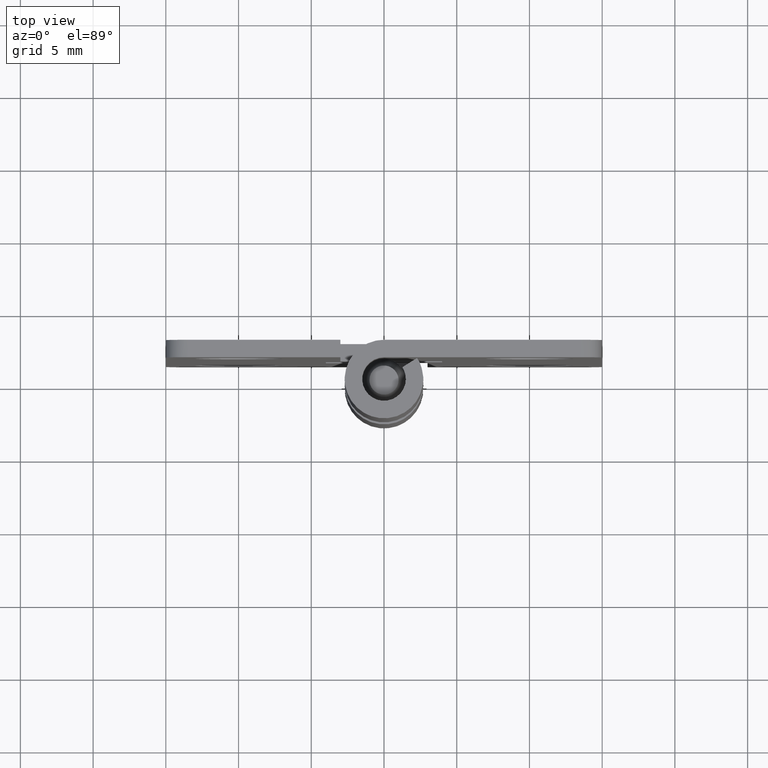
[diagram: clean part render]
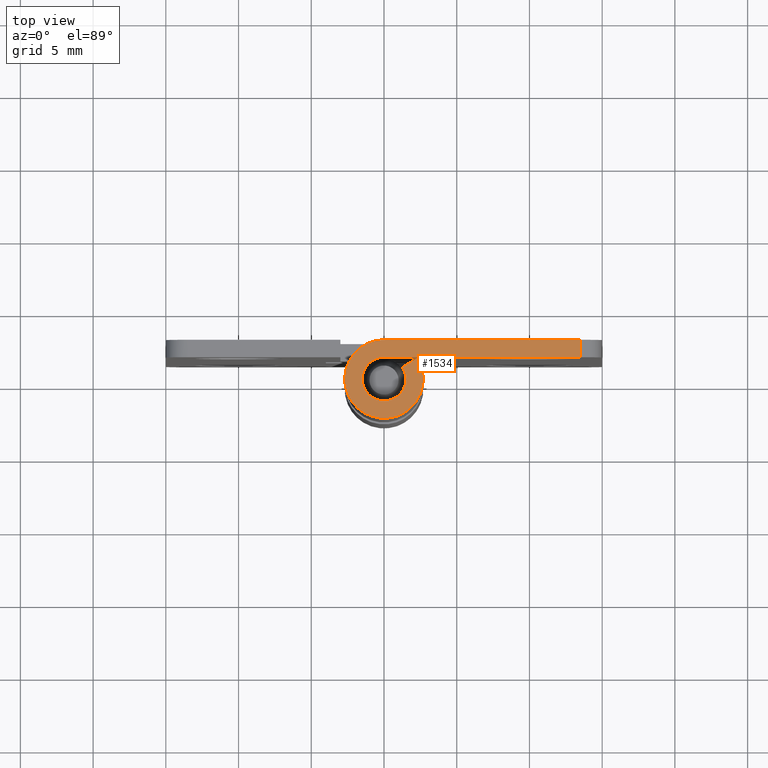
[diagram: same view with one face highlighted and labeled with its STEP entity id]
A machine part, top view. The second image highlights one B-rep face of the part: STEP entity #1534.
In plain terms, the highlighted face is a freeform B-spline surface patch.
Its self-contained STEP definition (entity closure, byte-faithful):
#1121=CARTESIAN_POINT('',(13.500000000000000,1.500000000000085,40.0));
#1122=VERTEX_POINT('',#1121);
#1143=CARTESIAN_POINT('',(13.500000000000000,2.699997000000000,40.0));
#1144=VERTEX_POINT('',#1143);
#1158=CARTESIAN_POINT('',(13.500000000000000,1.500000000000085,40.0));
#1159=CARTESIAN_POINT('',(13.500000000000000,2.699997000000000,40.0));
#1160=QUASI_UNIFORM_CURVE('',1,(#1158,#1159),.UNSPECIFIED.,.F.,.U.);
#1161=EDGE_CURVE('',#1122,#1144,#1160,.T.);
#1465=CARTESIAN_POINT('',(-3.508910966029414,2.969679104522496,40.0));
#1466=CARTESIAN_POINT('',(14.309177129929500,2.969679104522496,40.0));
#1467=CARTESIAN_POINT('',(-3.508910966029414,-2.968727653347806,40.0));
#1468=CARTESIAN_POINT('',(14.309177129929500,-2.968727653347806,40.0));
#1469=B_SPLINE_SURFACE_WITH_KNOTS('',1,1,((#1465,#1467),(#1466,#1468)),.UNSPECIFIED.,.F.,.F.,.U.,(2,2),(2,2),(0.0,17.818088095958920),(0.0,5.938406757870301),.UNSPECIFIED.);
#1470=CARTESIAN_POINT('',(-2.755364E-016,1.500000000000000,40.0));
#1471=VERTEX_POINT('',#1470);
#1472=CARTESIAN_POINT('',(-2.755364E-016,1.500000000000000,40.0));
#1473=CARTESIAN_POINT('',(13.500000000000000,1.500000000000085,40.0));
#1474=QUASI_UNIFORM_CURVE('',1,(#1472,#1473),.UNSPECIFIED.,.F.,.U.);
#1475=EDGE_CURVE('',#1471,#1122,#1474,.T.);
#1476=ORIENTED_EDGE('',*,*,#1475,.T.);
#1477=ORIENTED_EDGE('',*,*,#1161,.T.);
#1478=CARTESIAN_POINT('',(-0.004024921244143,2.699997000000000,40.0));
#1479=VERTEX_POINT('',#1478);
#1480=CARTESIAN_POINT('',(13.500000000000000,2.699997000000000,40.0));
#1481=CARTESIAN_POINT('',(-0.004024921244143,2.699997000000000,40.0));
#1482=QUASI_UNIFORM_CURVE('',1,(#1480,#1481),.UNSPECIFIED.,.F.,.U.);
#1483=EDGE_CURVE('',#1144,#1479,#1482,.T.);
#1484=ORIENTED_EDGE('',*,*,#1483,.T.);
#1485=CARTESIAN_POINT('',(2.277608394786020,1.450000000000086,40.0));
#1486=VERTEX_POINT('',#1485);
#1487=CARTESIAN_POINT('',(-0.004024921244143,2.699996999999996,40.0));
#1488=CARTESIAN_POINT('',(-2.098326634964209,2.696874996731402,39.999999999999993));
#1489=CARTESIAN_POINT('',(-2.616163126881536,0.667600549389699,40.0));
#1490=CARTESIAN_POINT('',(-3.133999618798861,-1.361673897952001,39.999999999999993));
#1491=CARTESIAN_POINT('',(-1.297273516955034,-2.367927664057143,40.0));
#1492=CARTESIAN_POINT('',(0.539452584888794,-3.374181430162285,39.999999999999993));
#1493=CARTESIAN_POINT('',(1.970889908180145,-1.845424875153052,40.0));
#1494=CARTESIAN_POINT('',(3.402327231471497,-0.316668320143818,39.999999999999993));
#1495=CARTESIAN_POINT('',(2.277608394786021,1.450000000000085,40.0));
#1503=(BOUNDED_CURVE()B_SPLINE_CURVE(2,(#1487,#1488,#1489,#1490,#1491,#1492,#1493,#1494,#1495),.UNSPECIFIED.,.F.,.U.)B_SPLINE_CURVE_WITH_KNOTS((3,2,2,2,3),(0.0,0.250000000000000,0.500000000000000,0.750000000000000,1.0),.UNSPECIFIED.)CURVE()GEOMETRIC_REPRESENTATION_ITEM()RATIONAL_B_SPLINE_CURVE((1.0,0.790159354797375,1.0,0.790159354797375,1.0,0.790159354797375,1.0,0.790159354797375,1.0))REPRESENTATION_ITEM(''));
#1504=EDGE_CURVE('',#1479,#1486,#1503,.T.);
#1505=ORIENTED_EDGE('',*,*,#1504,.T.);
#1506=CARTESIAN_POINT('',(1.265337997103346,0.805555555555603,40.0));
#1507=VERTEX_POINT('',#1506);
#1508=CARTESIAN_POINT('',(2.277608394786020,1.450000000000086,40.0));
#1509=CARTESIAN_POINT('',(1.265337997103346,0.805555555555603,40.0));
#1510=QUASI_UNIFORM_CURVE('',1,(#1508,#1509),.UNSPECIFIED.,.F.,.U.);
#1511=EDGE_CURVE('',#1486,#1507,#1510,.T.);
#1512=ORIENTED_EDGE('',*,*,#1511,.T.);
#1513=CARTESIAN_POINT('',(0.0,1.500000000000000,40.0));
#1514=CARTESIAN_POINT('',(-1.163949987496306,1.499999999999999,40.0));
#1515=CARTESIAN_POINT('',(-1.453008384311229,0.372513939499278,40.0));
#1516=CARTESIAN_POINT('',(-1.742066781126153,-0.754972121001445,40.0));
#1517=CARTESIAN_POINT('',(-0.721687836487008,-1.314977819838305,40.0));
#1518=CARTESIAN_POINT('',(0.298691108152137,-1.874983518675164,40.0));
#1519=CARTESIAN_POINT('',(1.094556678899916,-1.025644030195461,40.0));
#1520=CARTESIAN_POINT('',(1.890422249647694,-0.176304541715757,40.0));
#1521=CARTESIAN_POINT('',(1.265337997103345,0.805555555555603,40.0));
#1529=(BOUNDED_CURVE()B_SPLINE_CURVE(2,(#1513,#1514,#1515,#1516,#1517,#1518,#1519,#1520,#1521),.UNSPECIFIED.,.F.,.U.)B_SPLINE_CURVE_WITH_KNOTS((3,2,2,2,3),(0.0,0.250000000000000,0.500000000000000,0.750000000000000,1.0),.UNSPECIFIED.)CURVE()GEOMETRIC_REPRESENTATION_ITEM()RATIONAL_B_SPLINE_CURVE((1.0,0.790045133626191,1.0,0.790045133626191,1.0,0.790045133626191,1.0,0.790045133626191,1.0))REPRESENTATION_ITEM(''));
#1530=EDGE_CURVE('',#1471,#1507,#1529,.T.);
#1531=ORIENTED_EDGE('',*,*,#1530,.F.);
#1532=EDGE_LOOP('',(#1476,#1477,#1484,#1505,#1512,#1531));
#1533=FACE_OUTER_BOUND('',#1532,.T.);
#1534=ADVANCED_FACE('',(#1533),#1469,.F.);